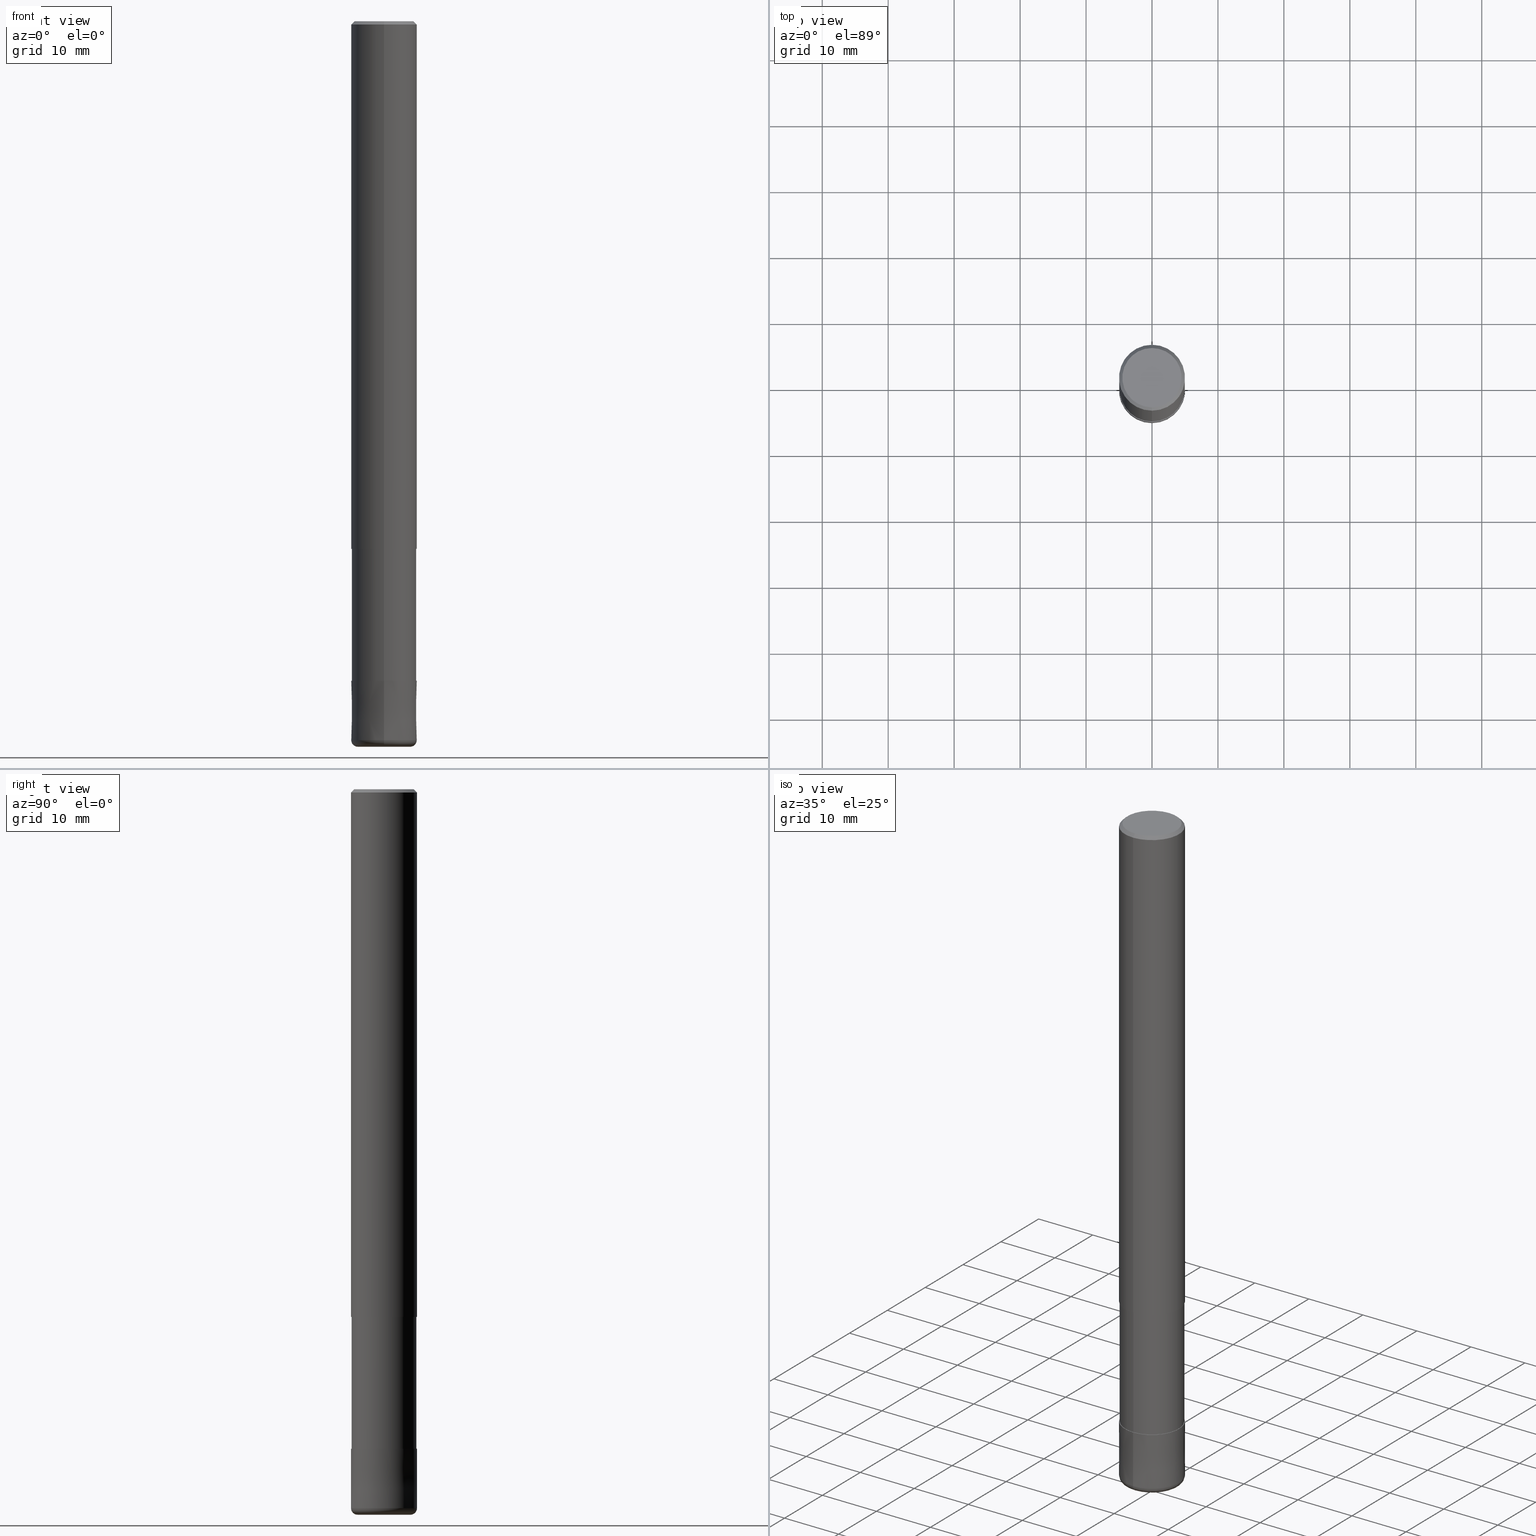
[diagram: canonical four-view strip — front | top / right | iso, engineering-drawing reading convention]
A machine part, canonical four-view strip (front | top / right | iso — engineering-drawing reading convention). The complete STEP part file that produces these views, byte-faithful:
ISO-10303-21;
HEADER;
FILE_DESCRIPTION(('no description'),'unknown implementation level');
FILE_NAME('HRRS4100-10-30-Huellk.stp','  ',('CIMSOURCE GmbH'),('CADClick - KiM GmbH - www.kimweb.de'),'unknown preprocess','ACIS','unknown authorization');
FILE_SCHEMA(('automotive_design'));
ENDSEC;
DATA;
#1=MECHANICAL_DESIGN_GEOMETRIC_PRESENTATION_REPRESENTATION(' ',(#14,#15,#16,#17,#18,#19,#20,#21,#22,#23,#24,#25,#26,#27,#28,#29,#30,#31,#32,#33,#34,#35,#36,#37,#38,#39,#40,#41,#42,#43,#44,#45,#46,#47,#48,#49,#50,#51,#52,#53,#54,#55,#56,#57,#58,#59,#60,#61,#62,#63,#64,#65,#66,#67,#68,#69,#70,#71,#72),#10);
#2=PRODUCT_DEFINITION_CONTEXT('',#73,'design');
#3=APPLICATION_PROTOCOL_DEFINITION('INTERNATIONAL STANDARD','automotive_design',1994,#73);
#4=PRODUCT_CATEGORY_RELATIONSHIP('NONE','NONE',#74,#75);
#5=SHAPE_DEFINITION_REPRESENTATION(#76,#77);
#6=PRODUCT_DEFINITION_CONTEXT('',#78,'design');
#7=APPLICATION_PROTOCOL_DEFINITION('INTERNATIONAL STANDARD','automotive_design',1994,#78);
#8=PRODUCT_CATEGORY_RELATIONSHIP('NONE','NONE',#79,#80);
#9=SHAPE_DEFINITION_REPRESENTATION(#81,#82);
#10= (GEOMETRIC_REPRESENTATION_CONTEXT(3)GLOBAL_UNCERTAINTY_ASSIGNED_CONTEXT((#85))GLOBAL_UNIT_ASSIGNED_CONTEXT((#87,#88,#89))REPRESENTATION_CONTEXT('NONE','WORKSPACE'));
#14=STYLED_ITEM('',(#91),#92);
#15=STYLED_ITEM('',(#93),#94);
#16=STYLED_ITEM('',(#95),#96);
#17=STYLED_ITEM('',(#97),#98);
#18=STYLED_ITEM('',(#99),#100);
#19=STYLED_ITEM('',(#101),#102);
#20=STYLED_ITEM('',(#103),#104);
#21=STYLED_ITEM('',(#105),#106);
#22=STYLED_ITEM('',(#107),#108);
#23=STYLED_ITEM('',(#109),#110);
#24=STYLED_ITEM('',(#111),#112);
#25=STYLED_ITEM('',(#113),#114);
#26=STYLED_ITEM('',(#115),#116);
#27=STYLED_ITEM('',(#117),#118);
#28=STYLED_ITEM('',(#119),#120);
#29=STYLED_ITEM('',(#121),#122);
#30=STYLED_ITEM('',(#123),#124);
#31=STYLED_ITEM('',(#125),#126);
#32=STYLED_ITEM('',(#127),#128);
#33=STYLED_ITEM('',(#129),#130);
#34=STYLED_ITEM('',(#131),#132);
#35=STYLED_ITEM('',(#133),#134);
#36=STYLED_ITEM('',(#135),#136);
#37=STYLED_ITEM('',(#137),#138);
#38=STYLED_ITEM('',(#139),#140);
#39=STYLED_ITEM('',(#141),#142);
#40=STYLED_ITEM('',(#143),#144);
#41=STYLED_ITEM('',(#145),#146);
#42=STYLED_ITEM('',(#147),#148);
#43=STYLED_ITEM('',(#149),#150);
#44=STYLED_ITEM('',(#151),#152);
#45=STYLED_ITEM('',(#153),#154);
#46=STYLED_ITEM('',(#155),#156);
#47=STYLED_ITEM('',(#157),#158);
#48=STYLED_ITEM('',(#159),#160);
#49=STYLED_ITEM('',(#161),#162);
#50=STYLED_ITEM('',(#163),#164);
#51=STYLED_ITEM('',(#165),#166);
#52=STYLED_ITEM('',(#167),#168);
#53=STYLED_ITEM('',(#169),#170);
#54=STYLED_ITEM('',(#171),#172);
#55=STYLED_ITEM('',(#173),#174);
#56=STYLED_ITEM('',(#175),#176);
#57=STYLED_ITEM('',(#177),#178);
#58=STYLED_ITEM('',(#179),#180);
#59=STYLED_ITEM('',(#181),#182);
#60=STYLED_ITEM('',(#183),#184);
#61=STYLED_ITEM('',(#185),#186);
#62=STYLED_ITEM('',(#187),#188);
#63=STYLED_ITEM('',(#189),#190);
#64=STYLED_ITEM('',(#191),#192);
#65=STYLED_ITEM('',(#193),#194);
#66=STYLED_ITEM('',(#195),#196);
#67=STYLED_ITEM('',(#197),#198);
#68=STYLED_ITEM('',(#199),#200);
#69=STYLED_ITEM('',(#201),#202);
#70=STYLED_ITEM('',(#203),#204);
#71=STYLED_ITEM('',(#205),#206);
#72=STYLED_ITEM('',(#207),#208);
#73=APPLICATION_CONTEXT(' ');
#74=PRODUCT_CATEGORY('part','NONE');
#75=PRODUCT_RELATED_PRODUCT_CATEGORY('detail',' ',(#209));
#76=PRODUCT_DEFINITION_SHAPE('NONE','NONE',#210);
#77=ADVANCED_BREP_SHAPE_REPRESENTATION('1',(#102,#211),#10);
#78=APPLICATION_CONTEXT(' ');
#79=PRODUCT_CATEGORY('part','NONE');
#80=PRODUCT_RELATED_PRODUCT_CATEGORY('detail',' ',(#212));
#81=PRODUCT_DEFINITION_SHAPE('NONE','NONE',#213);
#82=ADVANCED_BREP_SHAPE_REPRESENTATION('2',(#120,#214),#10);
#85=UNCERTAINTY_MEASURE_WITH_UNIT(LENGTH_MEASURE(1.0E-006),#87,'','');
#87= (CONVERSION_BASED_UNIT('MILLIMETRE',#217)LENGTH_UNIT()NAMED_UNIT(#220));
#88= (NAMED_UNIT(#222)PLANE_ANGLE_UNIT()SI_UNIT($,.RADIAN.));
#89= (NAMED_UNIT(#222)SOLID_ANGLE_UNIT()SI_UNIT($,.STERADIAN.));
#91=PRESENTATION_STYLE_ASSIGNMENT((#228));
#92=ADVANCED_FACE('',(#229),#230,.T.);
#93=PRESENTATION_STYLE_ASSIGNMENT((#231));
#94=EDGE_CURVE('',#176,#194,#232,.T.);
#95=PRESENTATION_STYLE_ASSIGNMENT((#233));
#96=VERTEX_POINT('',#234);
#97=PRESENTATION_STYLE_ASSIGNMENT((#235));
#98=VERTEX_POINT('',#236);
#99=PRESENTATION_STYLE_ASSIGNMENT((#237));
#100=EDGE_CURVE('',#160,#114,#238,.T.);
#101=PRESENTATION_STYLE_ASSIGNMENT((#239));
#102=MANIFOLD_SOLID_BREP('1',#240);
#103=PRESENTATION_STYLE_ASSIGNMENT((#241));
#104=EDGE_CURVE('',#150,#184,#242,.T.);
#105=PRESENTATION_STYLE_ASSIGNMENT((#243));
#106=VERTEX_POINT('',#244);
#107=PRESENTATION_STYLE_ASSIGNMENT((#245));
#108=EDGE_CURVE('',#194,#154,#246,.T.);
#109=PRESENTATION_STYLE_ASSIGNMENT((#247));
#110=EDGE_CURVE('',#154,#96,#248,.T.);
#111=PRESENTATION_STYLE_ASSIGNMENT((#249));
#112=ADVANCED_FACE('',(#250),#251,.T.);
#113=PRESENTATION_STYLE_ASSIGNMENT((#252));
#114=VERTEX_POINT('',#253);
#115=PRESENTATION_STYLE_ASSIGNMENT((#254));
#116=EDGE_CURVE('',#114,#176,#255,.T.);
#117=PRESENTATION_STYLE_ASSIGNMENT((#256));
#118=VERTEX_POINT('',#257);
#119=PRESENTATION_STYLE_ASSIGNMENT((#258));
#120=MANIFOLD_SOLID_BREP('2',#259);
#121=PRESENTATION_STYLE_ASSIGNMENT((#260));
#122=ADVANCED_FACE('',(#261),#262,.T.);
#123=PRESENTATION_STYLE_ASSIGNMENT((#263));
#124=ADVANCED_FACE('',(#264),#265,.T.);
#125=PRESENTATION_STYLE_ASSIGNMENT((#266));
#126=EDGE_CURVE('',#174,#150,#267,.T.);
#127=PRESENTATION_STYLE_ASSIGNMENT((#268));
#128=ADVANCED_FACE('',(#269),#270,.T.);
#129=PRESENTATION_STYLE_ASSIGNMENT((#271));
#130=EDGE_CURVE('',#114,#160,#272,.T.);
#131=PRESENTATION_STYLE_ASSIGNMENT((#273));
#132=EDGE_CURVE('',#184,#190,#274,.T.);
#133=PRESENTATION_STYLE_ASSIGNMENT((#275));
#134=ADVANCED_FACE('',(#276,#277),#278,.T.);
#135=PRESENTATION_STYLE_ASSIGNMENT((#279));
#136=VERTEX_POINT('',#280);
#137=PRESENTATION_STYLE_ASSIGNMENT((#281));
#138=EDGE_CURVE('',#106,#98,#282,.T.);
#139=PRESENTATION_STYLE_ASSIGNMENT((#283));
#140=EDGE_CURVE('',#154,#194,#284,.T.);
#141=PRESENTATION_STYLE_ASSIGNMENT((#285));
#142=EDGE_CURVE('',#190,#136,#286,.T.);
#143=PRESENTATION_STYLE_ASSIGNMENT((#287));
#144=EDGE_CURVE('',#96,#176,#288,.T.);
#145=PRESENTATION_STYLE_ASSIGNMENT((#289));
#146=ADVANCED_FACE('',(#290),#291,.T.);
#147=PRESENTATION_STYLE_ASSIGNMENT((#292));
#148=EDGE_CURVE('',#136,#118,#293,.T.);
#149=PRESENTATION_STYLE_ASSIGNMENT((#294));
#150=VERTEX_POINT('',#295);
#151=PRESENTATION_STYLE_ASSIGNMENT((#296));
#152=VERTEX_POINT('',#297);
#153=PRESENTATION_STYLE_ASSIGNMENT((#298));
#154=VERTEX_POINT('',#299);
#155=PRESENTATION_STYLE_ASSIGNMENT((#300));
#156=ADVANCED_FACE('',(#301),#302,.T.);
#157=PRESENTATION_STYLE_ASSIGNMENT((#303));
#158=ADVANCED_FACE('',(#304),#305,.T.);
#159=PRESENTATION_STYLE_ASSIGNMENT((#306));
#160=VERTEX_POINT('',#307);
#161=PRESENTATION_STYLE_ASSIGNMENT((#308));
#162=ADVANCED_FACE('',(#309),#310,.T.);
#163=PRESENTATION_STYLE_ASSIGNMENT((#311));
#164=VERTEX_POINT('',#312);
#165=PRESENTATION_STYLE_ASSIGNMENT((#313));
#166=EDGE_CURVE('',#152,#98,#314,.T.);
#167=PRESENTATION_STYLE_ASSIGNMENT((#315));
#168=EDGE_CURVE('',#150,#174,#316,.T.);
#169=PRESENTATION_STYLE_ASSIGNMENT((#317));
#170=EDGE_CURVE('',#118,#136,#318,.T.);
#171=PRESENTATION_STYLE_ASSIGNMENT((#319));
#172=EDGE_CURVE('',#190,#184,#320,.T.);
#173=PRESENTATION_STYLE_ASSIGNMENT((#321));
#174=VERTEX_POINT('',#322);
#175=PRESENTATION_STYLE_ASSIGNMENT((#323));
#176=VERTEX_POINT('',#324);
#177=PRESENTATION_STYLE_ASSIGNMENT((#325));
#178=EDGE_CURVE('',#176,#96,#326,.T.);
#179=PRESENTATION_STYLE_ASSIGNMENT((#327));
#180=EDGE_CURVE('',#96,#160,#328,.T.);
#181=PRESENTATION_STYLE_ASSIGNMENT((#329));
#182=EDGE_CURVE('',#118,#184,#330,.T.);
#183=PRESENTATION_STYLE_ASSIGNMENT((#331));
#184=VERTEX_POINT('',#332);
#185=PRESENTATION_STYLE_ASSIGNMENT((#333));
#186=ADVANCED_FACE('',(#334),#335,.T.);
#187=PRESENTATION_STYLE_ASSIGNMENT((#336));
#188=EDGE_CURVE('',#190,#174,#337,.T.);
#189=PRESENTATION_STYLE_ASSIGNMENT((#338));
#190=VERTEX_POINT('',#339);
#191=PRESENTATION_STYLE_ASSIGNMENT((#340));
#192=EDGE_CURVE('',#164,#152,#341,.T.);
#193=PRESENTATION_STYLE_ASSIGNMENT((#342));
#194=VERTEX_POINT('',#343);
#195=PRESENTATION_STYLE_ASSIGNMENT((#344));
#196=ADVANCED_FACE('',(#345),#346,.T.);
#197=PRESENTATION_STYLE_ASSIGNMENT((#347));
#198=ADVANCED_FACE('',(#348),#349,.T.);
#199=PRESENTATION_STYLE_ASSIGNMENT((#350));
#200=EDGE_CURVE('',#106,#164,#351,.T.);
#201=PRESENTATION_STYLE_ASSIGNMENT((#352));
#202=EDGE_CURVE('',#152,#164,#353,.T.);
#203=PRESENTATION_STYLE_ASSIGNMENT((#354));
#204=EDGE_CURVE('',#98,#106,#355,.T.);
#205=PRESENTATION_STYLE_ASSIGNMENT((#356));
#206=ADVANCED_FACE('',(#357),#358,.T.);
#207=PRESENTATION_STYLE_ASSIGNMENT((#359));
#208=ADVANCED_FACE('',(#360),#361,.T.);
#209=PRODUCT('1','1','PART-1-DESC',(#362));
#210=PRODUCT_DEFINITION('NONE','NONE',#363,#2);
#211=AXIS2_PLACEMENT_3D('',#364,#365,#366);
#212=PRODUCT('2','2','PART-2-DESC',(#367));
#213=PRODUCT_DEFINITION('NONE','NONE',#368,#6);
#214=AXIS2_PLACEMENT_3D('',#369,#370,#371);
#217=LENGTH_MEASURE_WITH_UNIT(LENGTH_MEASURE(1.0),#372);
#220=DIMENSIONAL_EXPONENTS(1.0,0.0,0.0,0.0,0.0,0.0,0.0);
#222=DIMENSIONAL_EXPONENTS(0.0,0.0,0.0,0.0,0.0,0.0,0.0);
#228=SURFACE_STYLE_USAGE(.BOTH.,#373);
#229=FACE_OUTER_BOUND('',#374,.T.);
#230=CYLINDRICAL_SURFACE('',#375,4.90995);
#231=CURVE_STYLE('',#376,POSITIVE_LENGTH_MEASURE(1.0E-006),#377);
#232=LINE('',#378,#379);
#233=POINT_STYLE(' ',#380,POSITIVE_LENGTH_MEASURE(1.0E-006),#381);
#234=CARTESIAN_POINT('',(6.12303176911189E-016,-5.0,-0.5));
#235=POINT_STYLE(' ',#382,POSITIVE_LENGTH_MEASURE(1.0E-006),#383);
#236=CARTESIAN_POINT('',(6.01275596695018E-016,-4.90995,-80.0));
#237=CURVE_STYLE('',#384,POSITIVE_LENGTH_MEASURE(1.0E-006),#385);
#238=CIRCLE('',#386,4.5);
#239=SURFACE_STYLE_USAGE(.BOTH.,#387);
#240=CLOSED_SHELL('',(#208,#156,#196,#134,#128,#124,#158,#92,#122));
#241=CURVE_STYLE('',#388,POSITIVE_LENGTH_MEASURE(1.0E-006),#389);
#242=LINE('',#390,#391);
#243=POINT_STYLE(' ',#392,POSITIVE_LENGTH_MEASURE(1.0E-006),#393);
#244=CARTESIAN_POINT('',(0.0,4.90995,-80.0));
#245=CURVE_STYLE('',#394,POSITIVE_LENGTH_MEASURE(1.0E-006),#395);
#246=CIRCLE('',#396,5.0);
#247=CURVE_STYLE('',#397,POSITIVE_LENGTH_MEASURE(1.0E-006),#398);
#248=LINE('',#399,#400);
#249=SURFACE_STYLE_USAGE(.BOTH.,#401);
#250=FACE_OUTER_BOUND('',#402,.T.);
#251=PLANE('',#403);
#252=POINT_STYLE(' ',#404,POSITIVE_LENGTH_MEASURE(1.0E-006),#405);
#253=CARTESIAN_POINT('',(0.0,4.5,0.0));
#254=CURVE_STYLE('',#406,POSITIVE_LENGTH_MEASURE(1.0E-006),#407);
#255=LINE('',#408,#409);
#256=POINT_STYLE(' ',#410,POSITIVE_LENGTH_MEASURE(1.0E-006),#411);
#257=CARTESIAN_POINT('',(0.0,4.0,-110.0));
#258=SURFACE_STYLE_USAGE(.BOTH.,#412);
#259=CLOSED_SHELL('',(#186,#206,#112,#162,#198,#146));
#260=SURFACE_STYLE_USAGE(.BOTH.,#413);
#261=FACE_OUTER_BOUND('',#414,.T.);
#262=PLANE('',#415);
#263=SURFACE_STYLE_USAGE(.BOTH.,#416);
#264=FACE_OUTER_BOUND('',#417,.T.);
#265=CONICAL_SURFACE('',#418,4.75,0.785398163397448);
#266=CURVE_STYLE('',#419,POSITIVE_LENGTH_MEASURE(1.0E-006),#420);
#267=CIRCLE('',#421,4.9999);
#268=SURFACE_STYLE_USAGE(.BOTH.,#422);
#269=FACE_OUTER_BOUND('',#423,.T.);
#270=PLANE('',#424);
#271=CURVE_STYLE('',#425,POSITIVE_LENGTH_MEASURE(1.0E-006),#426);
#272=CIRCLE('',#427,4.5);
#273=CURVE_STYLE('',#428,POSITIVE_LENGTH_MEASURE(1.0E-006),#429);
#274=CIRCLE('',#430,5.0);
#275=SURFACE_STYLE_USAGE(.BOTH.,#431);
#276=FACE_OUTER_BOUND('',#432,.T.);
#277=FACE_BOUND('',#433,.T.);
#278=PLANE('',#434);
#279=POINT_STYLE(' ',#435,POSITIVE_LENGTH_MEASURE(1.0E-006),#436);
#280=CARTESIAN_POINT('',(4.89842541528951E-016,-4.0,-110.0));
#281=CURVE_STYLE('',#437,POSITIVE_LENGTH_MEASURE(1.0E-006),#438);
#282=CIRCLE('',#439,4.90995);
#283=CURVE_STYLE('',#440,POSITIVE_LENGTH_MEASURE(1.0E-006),#441);
#284=CIRCLE('',#442,5.0);
#285=CURVE_STYLE('',#443,POSITIVE_LENGTH_MEASURE(1.0E-006),#444);
#286=CIRCLE('',#445,1.0);
#287=CURVE_STYLE('',#446,POSITIVE_LENGTH_MEASURE(1.0E-006),#447);
#288=CIRCLE('',#448,5.0);
#289=SURFACE_STYLE_USAGE(.BOTH.,#449);
#290=FACE_OUTER_BOUND('',#450,.T.);
#291=PLANE('',#451);
#292=CURVE_STYLE('',#452,POSITIVE_LENGTH_MEASURE(1.0E-006),#453);
#293=CIRCLE('',#454,4.0);
#294=POINT_STYLE(' ',#455,POSITIVE_LENGTH_MEASURE(1.0E-006),#456);
#295=CARTESIAN_POINT('',(0.0,4.9999,-100.0));
#296=POINT_STYLE(' ',#457,POSITIVE_LENGTH_MEASURE(1.0E-006),#458);
#297=CARTESIAN_POINT('',(6.01275596695018E-016,-4.90995,-100.0));
#298=POINT_STYLE(' ',#459,POSITIVE_LENGTH_MEASURE(1.0E-006),#460);
#299=CARTESIAN_POINT('',(6.12303176911189E-016,-5.0,-80.0));
#300=SURFACE_STYLE_USAGE(.BOTH.,#461);
#301=FACE_OUTER_BOUND('',#462,.T.);
#302=CYLINDRICAL_SURFACE('',#463,5.0);
#303=SURFACE_STYLE_USAGE(.BOTH.,#464);
#304=FACE_OUTER_BOUND('',#465,.T.);
#305=CYLINDRICAL_SURFACE('',#466,5.0);
#306=POINT_STYLE(' ',#467,POSITIVE_LENGTH_MEASURE(1.0E-006),#468);
#307=CARTESIAN_POINT('',(5.5107285922007E-016,-4.5,0.0));
#308=SURFACE_STYLE_USAGE(.BOTH.,#469);
#309=FACE_OUTER_BOUND('',#470,.T.);
#310=CONICAL_SURFACE('',#471,4.99995,1.1111111110628E-005);
#311=POINT_STYLE(' ',#472,POSITIVE_LENGTH_MEASURE(1.0E-006),#473);
#312=CARTESIAN_POINT('',(0.0,4.90995,-100.0));
#313=CURVE_STYLE('',#474,POSITIVE_LENGTH_MEASURE(1.0E-006),#475);
#314=LINE('',#476,#477);
#315=CURVE_STYLE('',#478,POSITIVE_LENGTH_MEASURE(1.0E-006),#479);
#316=CIRCLE('',#480,4.9999);
#317=CURVE_STYLE('',#481,POSITIVE_LENGTH_MEASURE(1.0E-006),#482);
#318=CIRCLE('',#483,4.0);
#319=CURVE_STYLE('',#484,POSITIVE_LENGTH_MEASURE(1.0E-006),#485);
#320=CIRCLE('',#486,5.0);
#321=POINT_STYLE(' ',#487,POSITIVE_LENGTH_MEASURE(1.0E-006),#488);
#322=CARTESIAN_POINT('',(6.1229093084765E-016,-4.9999,-100.0));
#323=POINT_STYLE(' ',#489,POSITIVE_LENGTH_MEASURE(1.0E-006),#490);
#324=CARTESIAN_POINT('',(0.0,5.0,-0.5));
#325=CURVE_STYLE('',#491,POSITIVE_LENGTH_MEASURE(1.0E-006),#492);
#326=CIRCLE('',#493,5.0);
#327=CURVE_STYLE('',#494,POSITIVE_LENGTH_MEASURE(1.0E-006),#495);
#328=LINE('',#496,#497);
#329=CURVE_STYLE('',#498,POSITIVE_LENGTH_MEASURE(1.0E-006),#499);
#330=CIRCLE('',#500,1.0);
#331=POINT_STYLE(' ',#501,POSITIVE_LENGTH_MEASURE(1.0E-006),#502);
#332=CARTESIAN_POINT('',(0.0,5.0,-109.0));
#333=SURFACE_STYLE_USAGE(.BOTH.,#503);
#334=FACE_OUTER_BOUND('',#504,.T.);
#335=TOROIDAL_SURFACE('',#505,4.0,1.0);
#336=CURVE_STYLE('',#506,POSITIVE_LENGTH_MEASURE(1.0E-006),#507);
#337=LINE('',#508,#509);
#338=POINT_STYLE(' ',#510,POSITIVE_LENGTH_MEASURE(1.0E-006),#511);
#339=CARTESIAN_POINT('',(6.12303176911189E-016,-5.0,-109.0));
#340=CURVE_STYLE('',#512,POSITIVE_LENGTH_MEASURE(1.0E-006),#513);
#341=CIRCLE('',#514,4.90995);
#342=POINT_STYLE(' ',#515,POSITIVE_LENGTH_MEASURE(1.0E-006),#516);
#343=CARTESIAN_POINT('',(0.0,5.0,-80.0));
#344=SURFACE_STYLE_USAGE(.BOTH.,#517);
#345=FACE_OUTER_BOUND('',#518,.T.);
#346=CONICAL_SURFACE('',#519,4.75,0.785398163397448);
#347=SURFACE_STYLE_USAGE(.BOTH.,#520);
#348=FACE_OUTER_BOUND('',#521,.T.);
#349=TOROIDAL_SURFACE('',#522,4.0,1.0);
#350=CURVE_STYLE('',#523,POSITIVE_LENGTH_MEASURE(1.0E-006),#524);
#351=LINE('',#525,#526);
#352=CURVE_STYLE('',#527,POSITIVE_LENGTH_MEASURE(1.0E-006),#528);
#353=CIRCLE('',#529,4.90995);
#354=CURVE_STYLE('',#530,POSITIVE_LENGTH_MEASURE(1.0E-006),#531);
#355=CIRCLE('',#532,4.90995);
#356=SURFACE_STYLE_USAGE(.BOTH.,#533);
#357=FACE_OUTER_BOUND('',#534,.T.);
#358=CONICAL_SURFACE('',#535,4.99995,1.1111111110628E-005);
#359=SURFACE_STYLE_USAGE(.BOTH.,#536);
#360=FACE_OUTER_BOUND('',#537,.T.);
#361=CYLINDRICAL_SURFACE('',#538,4.90995);
#362=PRODUCT_CONTEXT('',#73,'mechanical');
#363=PRODUCT_DEFINITION_FORMATION_WITH_SPECIFIED_SOURCE(' ','NONE',#209,.NOT_KNOWN.);
#364=CARTESIAN_POINT('',(0.0,0.0,0.0));
#365=DIRECTION('',(0.0,0.0,1.0));
#366=DIRECTION('',(1.0,0.0,0.0));
#367=PRODUCT_CONTEXT('',#78,'mechanical');
#368=PRODUCT_DEFINITION_FORMATION_WITH_SPECIFIED_SOURCE(' ','NONE',#212,.NOT_KNOWN.);
#369=CARTESIAN_POINT('',(0.0,0.0,0.0));
#370=DIRECTION('',(0.0,0.0,1.0));
#371=DIRECTION('',(1.0,0.0,0.0));
#372= (NAMED_UNIT(#220)LENGTH_UNIT()SI_UNIT(.MILLI.,.METRE.));
#373=SURFACE_SIDE_STYLE('',(#540));
#374=EDGE_LOOP('',(#541,#542,#543,#544));
#375=AXIS2_PLACEMENT_3D('',#545,#546,#547);
#376=DRAUGHTING_PRE_DEFINED_CURVE_FONT('continuous');
#377=COLOUR_RGB('',0.498039215803146,0.498039215803146,0.498039215803146);
#378=CARTESIAN_POINT('',(-6.12303176911189E-016,5.0,-40.25));
#379=VECTOR('',#548,1.0);
#380=PRE_DEFINED_MARKER('');
#381=COLOUR_RGB('',0.498039215803146,0.498039215803146,0.498039215803146);
#382=PRE_DEFINED_MARKER('');
#383=COLOUR_RGB('',0.498039215803146,0.498039215803146,0.498039215803146);
#384=DRAUGHTING_PRE_DEFINED_CURVE_FONT('continuous');
#385=COLOUR_RGB('',0.498039215803146,0.498039215803146,0.498039215803146);
#386=AXIS2_PLACEMENT_3D('',#549,#550,#551);
#387=SURFACE_SIDE_STYLE('',(#552));
#388=DRAUGHTING_PRE_DEFINED_CURVE_FONT('continuous');
#389=COLOUR_RGB('',0.800000011920929,0.800000011920929,0.800000011920929);
#390=CARTESIAN_POINT('',(-6.12297053879419E-016,4.99995,-104.5));
#391=VECTOR('',#553,1.0);
#392=PRE_DEFINED_MARKER('');
#393=COLOUR_RGB('',0.498039215803146,0.498039215803146,0.498039215803146);
#394=DRAUGHTING_PRE_DEFINED_CURVE_FONT('continuous');
#395=COLOUR_RGB('',0.498039215803146,0.498039215803146,0.498039215803146);
#396=AXIS2_PLACEMENT_3D('',#554,#555,#556);
#397=DRAUGHTING_PRE_DEFINED_CURVE_FONT('continuous');
#398=COLOUR_RGB('',0.498039215803146,0.498039215803146,0.498039215803146);
#399=CARTESIAN_POINT('',(6.12303176911189E-016,-5.0,-40.25));
#400=VECTOR('',#557,1.0);
#401=SURFACE_SIDE_STYLE('',(#558));
#402=EDGE_LOOP('',(#559,#560));
#403=AXIS2_PLACEMENT_3D('',#561,#562,#563);
#404=PRE_DEFINED_MARKER('');
#405=COLOUR_RGB('',0.498039215803146,0.498039215803146,0.498039215803146);
#406=DRAUGHTING_PRE_DEFINED_CURVE_FONT('continuous');
#407=COLOUR_RGB('',0.498039215803146,0.498039215803146,0.498039215803146);
#408=CARTESIAN_POINT('',(-5.81688018065629E-016,4.75,-0.25));
#409=VECTOR('',#564,1.0);
#410=PRE_DEFINED_MARKER('');
#411=COLOUR_RGB('',0.800000011920929,0.800000011920929,0.800000011920929);
#412=SURFACE_SIDE_STYLE('',(#565));
#413=SURFACE_SIDE_STYLE('',(#566));
#414=EDGE_LOOP('',(#567,#568));
#415=AXIS2_PLACEMENT_3D('',#569,#570,#571);
#416=SURFACE_SIDE_STYLE('',(#572));
#417=EDGE_LOOP('',(#573,#574,#575,#576));
#418=AXIS2_PLACEMENT_3D('',#577,#578,#579);
#419=DRAUGHTING_PRE_DEFINED_CURVE_FONT('continuous');
#420=COLOUR_RGB('',0.800000011920929,0.800000011920929,0.800000011920929);
#421=AXIS2_PLACEMENT_3D('',#580,#581,#582);
#422=SURFACE_SIDE_STYLE('',(#583));
#423=EDGE_LOOP('',(#584,#585));
#424=AXIS2_PLACEMENT_3D('',#586,#587,#588);
#425=DRAUGHTING_PRE_DEFINED_CURVE_FONT('continuous');
#426=COLOUR_RGB('',0.498039215803146,0.498039215803146,0.498039215803146);
#427=AXIS2_PLACEMENT_3D('',#589,#590,#591);
#428=DRAUGHTING_PRE_DEFINED_CURVE_FONT('continuous');
#429=COLOUR_RGB('',0.800000011920929,0.800000011920929,0.800000011920929);
#430=AXIS2_PLACEMENT_3D('',#592,#593,#594);
#431=SURFACE_SIDE_STYLE('',(#595));
#432=EDGE_LOOP('',(#596,#597));
#433=EDGE_LOOP('',(#598,#599));
#434=AXIS2_PLACEMENT_3D('',#600,#601,#602);
#435=PRE_DEFINED_MARKER('');
#436=COLOUR_RGB('',0.800000011920929,0.800000011920929,0.800000011920929);
#437=DRAUGHTING_PRE_DEFINED_CURVE_FONT('continuous');
#438=COLOUR_RGB('',0.498039215803146,0.498039215803146,0.498039215803146);
#439=AXIS2_PLACEMENT_3D('',#603,#604,#605);
#440=DRAUGHTING_PRE_DEFINED_CURVE_FONT('continuous');
#441=COLOUR_RGB('',0.498039215803146,0.498039215803146,0.498039215803146);
#442=AXIS2_PLACEMENT_3D('',#606,#607,#608);
#443=DRAUGHTING_PRE_DEFINED_CURVE_FONT('continuous');
#444=COLOUR_RGB('',0.800000011920929,0.800000011920929,0.800000011920929);
#445=AXIS2_PLACEMENT_3D('',#609,#610,#611);
#446=DRAUGHTING_PRE_DEFINED_CURVE_FONT('continuous');
#447=COLOUR_RGB('',0.498039215803146,0.498039215803146,0.498039215803146);
#448=AXIS2_PLACEMENT_3D('',#612,#613,#614);
#449=SURFACE_SIDE_STYLE('',(#615));
#450=EDGE_LOOP('',(#616,#617));
#451=AXIS2_PLACEMENT_3D('',#618,#619,#620);
#452=DRAUGHTING_PRE_DEFINED_CURVE_FONT('continuous');
#453=COLOUR_RGB('',0.800000011920929,0.800000011920929,0.800000011920929);
#454=AXIS2_PLACEMENT_3D('',#621,#622,#623);
#455=PRE_DEFINED_MARKER('');
#456=COLOUR_RGB('',0.800000011920929,0.800000011920929,0.800000011920929);
#457=PRE_DEFINED_MARKER('');
#458=COLOUR_RGB('',0.498039215803146,0.498039215803146,0.498039215803146);
#459=PRE_DEFINED_MARKER('');
#460=COLOUR_RGB('',0.498039215803146,0.498039215803146,0.498039215803146);
#461=SURFACE_SIDE_STYLE('',(#624));
#462=EDGE_LOOP('',(#625,#626,#627,#628));
#463=AXIS2_PLACEMENT_3D('',#629,#630,#631);
#464=SURFACE_SIDE_STYLE('',(#632));
#465=EDGE_LOOP('',(#633,#634,#635,#636));
#466=AXIS2_PLACEMENT_3D('',#637,#638,#639);
#467=PRE_DEFINED_MARKER('');
#468=COLOUR_RGB('',0.498039215803146,0.498039215803146,0.498039215803146);
#469=SURFACE_SIDE_STYLE('',(#640));
#470=EDGE_LOOP('',(#641,#642,#643,#644));
#471=AXIS2_PLACEMENT_3D('',#645,#646,#647);
#472=PRE_DEFINED_MARKER('');
#473=COLOUR_RGB('',0.498039215803146,0.498039215803146,0.498039215803146);
#474=DRAUGHTING_PRE_DEFINED_CURVE_FONT('continuous');
#475=COLOUR_RGB('',0.498039215803146,0.498039215803146,0.498039215803146);
#476=CARTESIAN_POINT('',(6.01275596695018E-016,-4.90995,-90.0));
#477=VECTOR('',#648,1.0);
#478=DRAUGHTING_PRE_DEFINED_CURVE_FONT('continuous');
#479=COLOUR_RGB('',0.800000011920929,0.800000011920929,0.800000011920929);
#480=AXIS2_PLACEMENT_3D('',#649,#650,#651);
#481=DRAUGHTING_PRE_DEFINED_CURVE_FONT('continuous');
#482=COLOUR_RGB('',0.800000011920929,0.800000011920929,0.800000011920929);
#483=AXIS2_PLACEMENT_3D('',#652,#653,#654);
#484=DRAUGHTING_PRE_DEFINED_CURVE_FONT('continuous');
#485=COLOUR_RGB('',0.800000011920929,0.800000011920929,0.800000011920929);
#486=AXIS2_PLACEMENT_3D('',#655,#656,#657);
#487=PRE_DEFINED_MARKER('');
#488=COLOUR_RGB('',0.800000011920929,0.800000011920929,0.800000011920929);
#489=PRE_DEFINED_MARKER('');
#490=COLOUR_RGB('',0.498039215803146,0.498039215803146,0.498039215803146);
#491=DRAUGHTING_PRE_DEFINED_CURVE_FONT('continuous');
#492=COLOUR_RGB('',0.498039215803146,0.498039215803146,0.498039215803146);
#493=AXIS2_PLACEMENT_3D('',#658,#659,#660);
#494=DRAUGHTING_PRE_DEFINED_CURVE_FONT('continuous');
#495=COLOUR_RGB('',0.498039215803146,0.498039215803146,0.498039215803146);
#496=CARTESIAN_POINT('',(5.81688018065629E-016,-4.75,-0.25));
#497=VECTOR('',#661,1.0);
#498=DRAUGHTING_PRE_DEFINED_CURVE_FONT('continuous');
#499=COLOUR_RGB('',0.800000011920929,0.800000011920929,0.800000011920929);
#500=AXIS2_PLACEMENT_3D('',#662,#663,#664);
#501=PRE_DEFINED_MARKER('');
#502=COLOUR_RGB('',0.800000011920929,0.800000011920929,0.800000011920929);
#503=SURFACE_SIDE_STYLE('',(#665));
#504=EDGE_LOOP('',(#666,#667,#668,#669));
#505=AXIS2_PLACEMENT_3D('',#670,#671,#672);
#506=DRAUGHTING_PRE_DEFINED_CURVE_FONT('continuous');
#507=COLOUR_RGB('',0.800000011920929,0.800000011920929,0.800000011920929);
#508=CARTESIAN_POINT('',(6.12297053879419E-016,-4.99995,-104.5));
#509=VECTOR('',#673,1.0);
#510=PRE_DEFINED_MARKER('');
#511=COLOUR_RGB('',0.800000011920929,0.800000011920929,0.800000011920929);
#512=DRAUGHTING_PRE_DEFINED_CURVE_FONT('continuous');
#513=COLOUR_RGB('',0.498039215803146,0.498039215803146,0.498039215803146);
#514=AXIS2_PLACEMENT_3D('',#674,#675,#676);
#515=PRE_DEFINED_MARKER('');
#516=COLOUR_RGB('',0.498039215803146,0.498039215803146,0.498039215803146);
#517=SURFACE_SIDE_STYLE('',(#677));
#518=EDGE_LOOP('',(#678,#679,#680,#681));
#519=AXIS2_PLACEMENT_3D('',#682,#683,#684);
#520=SURFACE_SIDE_STYLE('',(#685));
#521=EDGE_LOOP('',(#686,#687,#688,#689));
#522=AXIS2_PLACEMENT_3D('',#690,#691,#692);
#523=DRAUGHTING_PRE_DEFINED_CURVE_FONT('continuous');
#524=COLOUR_RGB('',0.498039215803146,0.498039215803146,0.498039215803146);
#525=CARTESIAN_POINT('',(-6.01275596695018E-016,4.90995,-90.0));
#526=VECTOR('',#693,1.0);
#527=DRAUGHTING_PRE_DEFINED_CURVE_FONT('continuous');
#528=COLOUR_RGB('',0.498039215803146,0.498039215803146,0.498039215803146);
#529=AXIS2_PLACEMENT_3D('',#694,#695,#696);
#530=DRAUGHTING_PRE_DEFINED_CURVE_FONT('continuous');
#531=COLOUR_RGB('',0.498039215803146,0.498039215803146,0.498039215803146);
#532=AXIS2_PLACEMENT_3D('',#697,#698,#699);
#533=SURFACE_SIDE_STYLE('',(#700));
#534=EDGE_LOOP('',(#701,#702,#703,#704));
#535=AXIS2_PLACEMENT_3D('',#705,#706,#707);
#536=SURFACE_SIDE_STYLE('',(#708));
#537=EDGE_LOOP('',(#709,#710,#711,#712));
#538=AXIS2_PLACEMENT_3D('',#713,#714,#715);
#540=SURFACE_STYLE_FILL_AREA(#716);
#541=ORIENTED_EDGE('',*,*,#200,.T.);
#542=ORIENTED_EDGE('',*,*,#202,.F.);
#543=ORIENTED_EDGE('',*,*,#166,.T.);
#544=ORIENTED_EDGE('',*,*,#204,.T.);
#545=CARTESIAN_POINT('',(0.0,0.0,-90.0));
#546=DIRECTION('',(-0.0,-0.0,1.0));
#547=DIRECTION('',(0.0,1.0,0.0));
#548=DIRECTION('',(0.0,0.0,-1.0));
#549=CARTESIAN_POINT('',(0.0,0.0,0.0));
#550=DIRECTION('',(0.0,0.0,-1.0));
#551=DIRECTION('',(0.0,1.0,0.0));
#552=SURFACE_STYLE_FILL_AREA(#717);
#553=DIRECTION('',(-1.36067372638214E-021,1.11111111103993E-005,-0.999999999938272));
#554=CARTESIAN_POINT('',(0.0,0.0,-80.0));
#555=DIRECTION('',(0.0,0.0,-1.0));
#556=DIRECTION('',(0.0,1.0,0.0));
#557=DIRECTION('',(-0.0,-0.0,1.0));
#558=SURFACE_STYLE_FILL_AREA(#718);
#559=ORIENTED_EDGE('',*,*,#168,.F.);
#560=ORIENTED_EDGE('',*,*,#126,.F.);
#561=CARTESIAN_POINT('',(0.0,2.49995,-100.0));
#562=DIRECTION('',(-0.0,0.0,1.0));
#563=DIRECTION('',(0.0,-1.0,0.0));
#564=DIRECTION('',(-8.65927457071936E-017,0.707106781186548,-0.707106781186548));
#565=SURFACE_STYLE_FILL_AREA(#719);
#566=SURFACE_STYLE_FILL_AREA(#720);
#567=ORIENTED_EDGE('',*,*,#192,.T.);
#568=ORIENTED_EDGE('',*,*,#202,.T.);
#569=CARTESIAN_POINT('',(0.0,2.454975,-100.0));
#570=DIRECTION('',(0.0,0.0,-1.0));
#571=DIRECTION('',(0.0,1.0,0.0));
#572=SURFACE_STYLE_FILL_AREA(#721);
#573=ORIENTED_EDGE('',*,*,#116,.T.);
#574=ORIENTED_EDGE('',*,*,#144,.F.);
#575=ORIENTED_EDGE('',*,*,#180,.T.);
#576=ORIENTED_EDGE('',*,*,#100,.T.);
#577=CARTESIAN_POINT('',(0.0,0.0,-0.25));
#578=DIRECTION('',(0.0,-0.0,-1.0));
#579=DIRECTION('',(0.0,1.0,0.0));
#580=CARTESIAN_POINT('',(0.0,0.0,-100.0));
#581=DIRECTION('',(0.0,0.0,-1.0));
#582=DIRECTION('',(0.0,1.0,0.0));
#583=SURFACE_STYLE_FILL_AREA(#722);
#584=ORIENTED_EDGE('',*,*,#130,.F.);
#585=ORIENTED_EDGE('',*,*,#100,.F.);
#586=CARTESIAN_POINT('',(0.0,2.25,0.0));
#587=DIRECTION('',(-0.0,0.0,1.0));
#588=DIRECTION('',(0.0,-1.0,0.0));
#589=CARTESIAN_POINT('',(0.0,0.0,0.0));
#590=DIRECTION('',(0.0,0.0,-1.0));
#591=DIRECTION('',(0.0,1.0,0.0));
#592=CARTESIAN_POINT('',(0.0,0.0,-109.0));
#593=DIRECTION('',(0.0,0.0,-1.0));
#594=DIRECTION('',(0.0,1.0,0.0));
#595=SURFACE_STYLE_FILL_AREA(#723);
#596=ORIENTED_EDGE('',*,*,#108,.T.);
#597=ORIENTED_EDGE('',*,*,#140,.T.);
#598=ORIENTED_EDGE('',*,*,#138,.F.);
#599=ORIENTED_EDGE('',*,*,#204,.F.);
#600=CARTESIAN_POINT('',(0.0,2.5,-80.0));
#601=DIRECTION('',(0.0,0.0,-1.0));
#602=DIRECTION('',(0.0,1.0,0.0));
#603=CARTESIAN_POINT('',(0.0,0.0,-80.0));
#604=DIRECTION('',(0.0,0.0,-1.0));
#605=DIRECTION('',(0.0,1.0,0.0));
#606=CARTESIAN_POINT('',(0.0,0.0,-80.0));
#607=DIRECTION('',(0.0,0.0,-1.0));
#608=DIRECTION('',(0.0,1.0,0.0));
#609=CARTESIAN_POINT('',(4.89842541528951E-016,-4.0,-109.0));
#610=DIRECTION('',(1.0,1.22460635382238E-016,0.0));
#611=DIRECTION('',(1.22460635382238E-016,-1.0,-0.0));
#612=CARTESIAN_POINT('',(0.0,0.0,-0.5));
#613=DIRECTION('',(0.0,0.0,-1.0));
#614=DIRECTION('',(0.0,1.0,0.0));
#615=SURFACE_STYLE_FILL_AREA(#724);
#616=ORIENTED_EDGE('',*,*,#170,.T.);
#617=ORIENTED_EDGE('',*,*,#148,.T.);
#618=CARTESIAN_POINT('',(0.0,2.0,-110.0));
#619=DIRECTION('',(0.0,0.0,-1.0));
#620=DIRECTION('',(0.0,1.0,0.0));
#621=CARTESIAN_POINT('',(0.0,0.0,-110.0));
#622=DIRECTION('',(0.0,0.0,-1.0));
#623=DIRECTION('',(0.0,1.0,0.0));
#624=SURFACE_STYLE_FILL_AREA(#725);
#625=ORIENTED_EDGE('',*,*,#94,.F.);
#626=ORIENTED_EDGE('',*,*,#178,.T.);
#627=ORIENTED_EDGE('',*,*,#110,.F.);
#628=ORIENTED_EDGE('',*,*,#108,.F.);
#629=CARTESIAN_POINT('',(0.0,0.0,-40.25));
#630=DIRECTION('',(-0.0,-0.0,1.0));
#631=DIRECTION('',(0.0,1.0,0.0));
#632=SURFACE_STYLE_FILL_AREA(#726);
#633=ORIENTED_EDGE('',*,*,#94,.T.);
#634=ORIENTED_EDGE('',*,*,#140,.F.);
#635=ORIENTED_EDGE('',*,*,#110,.T.);
#636=ORIENTED_EDGE('',*,*,#144,.T.);
#637=CARTESIAN_POINT('',(0.0,0.0,-40.25));
#638=DIRECTION('',(-0.0,-0.0,1.0));
#639=DIRECTION('',(0.0,1.0,0.0));
#640=SURFACE_STYLE_FILL_AREA(#727);
#641=ORIENTED_EDGE('',*,*,#104,.T.);
#642=ORIENTED_EDGE('',*,*,#172,.F.);
#643=ORIENTED_EDGE('',*,*,#188,.T.);
#644=ORIENTED_EDGE('',*,*,#126,.T.);
#645=CARTESIAN_POINT('',(0.0,0.0,-104.5));
#646=DIRECTION('',(0.0,-0.0,-1.0));
#647=DIRECTION('',(0.0,1.0,0.0));
#648=DIRECTION('',(-0.0,-0.0,1.0));
#649=CARTESIAN_POINT('',(0.0,0.0,-100.0));
#650=DIRECTION('',(0.0,0.0,-1.0));
#651=DIRECTION('',(0.0,1.0,0.0));
#652=CARTESIAN_POINT('',(0.0,0.0,-110.0));
#653=DIRECTION('',(0.0,0.0,-1.0));
#654=DIRECTION('',(0.0,1.0,0.0));
#655=CARTESIAN_POINT('',(0.0,0.0,-109.0));
#656=DIRECTION('',(0.0,0.0,-1.0));
#657=DIRECTION('',(0.0,1.0,0.0));
#658=CARTESIAN_POINT('',(0.0,0.0,-0.5));
#659=DIRECTION('',(0.0,0.0,-1.0));
#660=DIRECTION('',(0.0,1.0,0.0));
#661=DIRECTION('',(-8.65927457071936E-017,0.707106781186548,0.707106781186548));
#662=CARTESIAN_POINT('',(-4.89842541528951E-016,4.0,-109.0));
#663=DIRECTION('',(1.0,1.22460635382238E-016,0.0));
#664=DIRECTION('',(-1.22460635382238E-016,1.0,0.0));
#665=SURFACE_STYLE_FILL_AREA(#728);
#666=ORIENTED_EDGE('',*,*,#142,.F.);
#667=ORIENTED_EDGE('',*,*,#172,.T.);
#668=ORIENTED_EDGE('',*,*,#182,.F.);
#669=ORIENTED_EDGE('',*,*,#148,.F.);
#670=CARTESIAN_POINT('',(0.0,0.0,-109.0));
#671=DIRECTION('',(0.0,0.0,-1.0));
#672=DIRECTION('',(0.0,-1.0,0.0));
#673=DIRECTION('',(-1.36067372638214E-021,1.11111111103993E-005,0.999999999938272));
#674=CARTESIAN_POINT('',(0.0,0.0,-100.0));
#675=DIRECTION('',(0.0,0.0,-1.0));
#676=DIRECTION('',(0.0,1.0,0.0));
#677=SURFACE_STYLE_FILL_AREA(#729);
#678=ORIENTED_EDGE('',*,*,#116,.F.);
#679=ORIENTED_EDGE('',*,*,#130,.T.);
#680=ORIENTED_EDGE('',*,*,#180,.F.);
#681=ORIENTED_EDGE('',*,*,#178,.F.);
#682=CARTESIAN_POINT('',(0.0,0.0,-0.25));
#683=DIRECTION('',(0.0,-0.0,-1.0));
#684=DIRECTION('',(0.0,1.0,0.0));
#685=SURFACE_STYLE_FILL_AREA(#730);
#686=ORIENTED_EDGE('',*,*,#142,.T.);
#687=ORIENTED_EDGE('',*,*,#170,.F.);
#688=ORIENTED_EDGE('',*,*,#182,.T.);
#689=ORIENTED_EDGE('',*,*,#132,.T.);
#690=CARTESIAN_POINT('',(0.0,0.0,-109.0));
#691=DIRECTION('',(0.0,0.0,-1.0));
#692=DIRECTION('',(0.0,-1.0,0.0));
#693=DIRECTION('',(0.0,0.0,-1.0));
#694=CARTESIAN_POINT('',(0.0,0.0,-100.0));
#695=DIRECTION('',(0.0,0.0,-1.0));
#696=DIRECTION('',(0.0,1.0,0.0));
#697=CARTESIAN_POINT('',(0.0,0.0,-80.0));
#698=DIRECTION('',(0.0,0.0,-1.0));
#699=DIRECTION('',(0.0,1.0,0.0));
#700=SURFACE_STYLE_FILL_AREA(#731);
#701=ORIENTED_EDGE('',*,*,#104,.F.);
#702=ORIENTED_EDGE('',*,*,#168,.T.);
#703=ORIENTED_EDGE('',*,*,#188,.F.);
#704=ORIENTED_EDGE('',*,*,#132,.F.);
#705=CARTESIAN_POINT('',(0.0,0.0,-104.5));
#706=DIRECTION('',(0.0,-0.0,-1.0));
#707=DIRECTION('',(0.0,1.0,0.0));
#708=SURFACE_STYLE_FILL_AREA(#732);
#709=ORIENTED_EDGE('',*,*,#200,.F.);
#710=ORIENTED_EDGE('',*,*,#138,.T.);
#711=ORIENTED_EDGE('',*,*,#166,.F.);
#712=ORIENTED_EDGE('',*,*,#192,.F.);
#713=CARTESIAN_POINT('',(0.0,0.0,-90.0));
#714=DIRECTION('',(-0.0,-0.0,1.0));
#715=DIRECTION('',(0.0,1.0,0.0));
#716=FILL_AREA_STYLE('',(#733));
#717=FILL_AREA_STYLE('',(#734));
#718=FILL_AREA_STYLE('',(#735));
#719=FILL_AREA_STYLE('',(#736));
#720=FILL_AREA_STYLE('',(#737));
#721=FILL_AREA_STYLE('',(#738));
#722=FILL_AREA_STYLE('',(#739));
#723=FILL_AREA_STYLE('',(#740));
#724=FILL_AREA_STYLE('',(#741));
#725=FILL_AREA_STYLE('',(#742));
#726=FILL_AREA_STYLE('',(#743));
#727=FILL_AREA_STYLE('',(#744));
#728=FILL_AREA_STYLE('',(#745));
#729=FILL_AREA_STYLE('',(#746));
#730=FILL_AREA_STYLE('',(#747));
#731=FILL_AREA_STYLE('',(#748));
#732=FILL_AREA_STYLE('',(#749));
#733=FILL_AREA_STYLE_COLOUR('',#750);
#734=FILL_AREA_STYLE_COLOUR('',#751);
#735=FILL_AREA_STYLE_COLOUR('',#752);
#736=FILL_AREA_STYLE_COLOUR('',#753);
#737=FILL_AREA_STYLE_COLOUR('',#754);
#738=FILL_AREA_STYLE_COLOUR('',#755);
#739=FILL_AREA_STYLE_COLOUR('',#756);
#740=FILL_AREA_STYLE_COLOUR('',#757);
#741=FILL_AREA_STYLE_COLOUR('',#758);
#742=FILL_AREA_STYLE_COLOUR('',#759);
#743=FILL_AREA_STYLE_COLOUR('',#760);
#744=FILL_AREA_STYLE_COLOUR('',#761);
#745=FILL_AREA_STYLE_COLOUR('',#762);
#746=FILL_AREA_STYLE_COLOUR('',#763);
#747=FILL_AREA_STYLE_COLOUR('',#764);
#748=FILL_AREA_STYLE_COLOUR('',#765);
#749=FILL_AREA_STYLE_COLOUR('',#766);
#750=COLOUR_RGB('',0.498039215803146,0.498039215803146,0.498039215803146);
#751=COLOUR_RGB('',0.498039215803146,0.498039215803146,0.498039215803146);
#752=COLOUR_RGB('',0.800000011920929,0.800000011920929,0.800000011920929);
#753=COLOUR_RGB('',0.800000011920929,0.800000011920929,0.800000011920929);
#754=COLOUR_RGB('',0.498039215803146,0.498039215803146,0.498039215803146);
#755=COLOUR_RGB('',0.498039215803146,0.498039215803146,0.498039215803146);
#756=COLOUR_RGB('',0.498039215803146,0.498039215803146,0.498039215803146);
#757=COLOUR_RGB('',0.498039215803146,0.498039215803146,0.498039215803146);
#758=COLOUR_RGB('',0.800000011920929,0.800000011920929,0.800000011920929);
#759=COLOUR_RGB('',0.498039215803146,0.498039215803146,0.498039215803146);
#760=COLOUR_RGB('',0.498039215803146,0.498039215803146,0.498039215803146);
#761=COLOUR_RGB('',0.800000011920929,0.800000011920929,0.800000011920929);
#762=COLOUR_RGB('',0.800000011920929,0.800000011920929,0.800000011920929);
#763=COLOUR_RGB('',0.498039215803146,0.498039215803146,0.498039215803146);
#764=COLOUR_RGB('',0.800000011920929,0.800000011920929,0.800000011920929);
#765=COLOUR_RGB('',0.800000011920929,0.800000011920929,0.800000011920929);
#766=COLOUR_RGB('',0.498039215803146,0.498039215803146,0.498039215803146);
#767=AXIS2_PLACEMENT_3D('PCS',#768,#769,#770);
#768=CARTESIAN_POINT('',(0.0,0.0,0.0));
#769=DIRECTION('',(0.0,0.0,1.0));
#770=DIRECTION('',(1.0,0.0,0.0));
#771=AXIS2_PLACEMENT_3D('CIP',#772,#773,#774);
#772=CARTESIAN_POINT('',(0.0,0.0,-110.0));
#773=DIRECTION('',(0.0,0.0,1.0));
#774=DIRECTION('',(1.0,0.0,0.0));
#775=AXIS2_PLACEMENT_3D('CRP',#776,#777,#778);
#776=CARTESIAN_POINT('',(-5.0,0.0,-110.0));
#777=DIRECTION('',(0.0,0.0,1.0));
#778=DIRECTION('',(1.0,0.0,0.0));
#779=AXIS2_PLACEMENT_3D('MCS',#780,#781,#782);
#780=CARTESIAN_POINT('',(0.0,0.0,-80.0));
#781=DIRECTION('',(0.0,0.0,1.0));
#782=DIRECTION('',(1.0,0.0,0.0));
#783=CONSTRUCTIVE_GEOMETRY_REPRESENTATION_RELATIONSHIP('coordinate systems',$,#77,#784);
#784=CONSTRUCTIVE_GEOMETRY_REPRESENTATION('coordinate systems',(#767,#771,#775,#779),#10);
ENDSEC;
END-ISO-10303-21;
